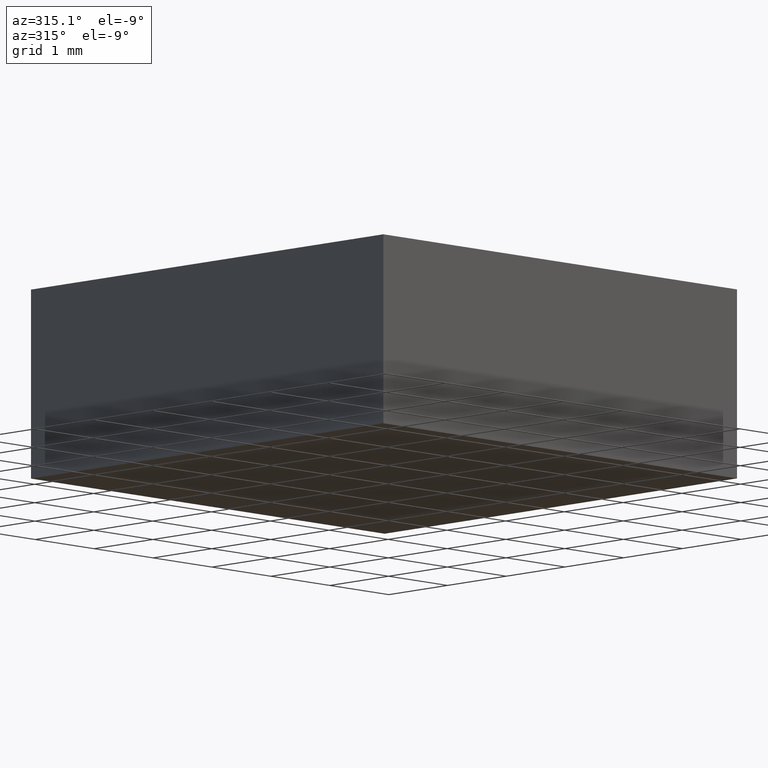
[diagram: clean part render]
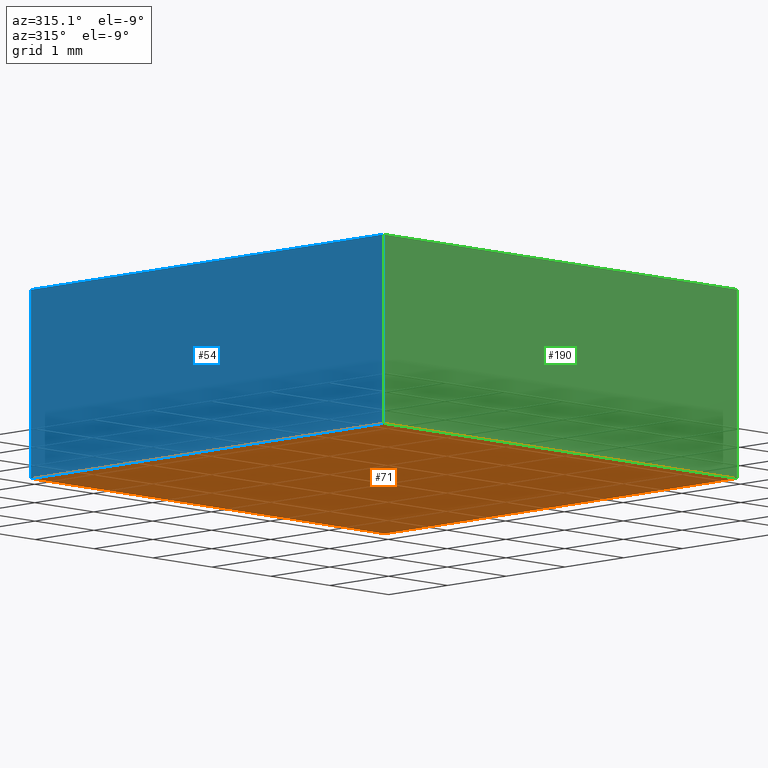
[diagram: same view with three faces highlighted in distinct colors, each labeled with its STEP entity id]
A machine part, auxiliary view with three faces highlighted in distinct colors.
Their STEP definitions:

[orange] entity #71 — the highlighted planar face has unit normal (-0, 0, 1).
#2 = DIRECTION ( 'NONE',  ( -5.782411586589356700E-016, -1.000000000000000000, 0.0000000000000000000 ) ) ;
#5 = CARTESIAN_POINT ( 'NONE',  ( 23.24958715517701800, 9.312648366905317900, 0.0000000000000000000 ) ) ;
#15 = ORIENTED_EDGE ( 'NONE', *, *, #181, .F. ) ;
#21 = CARTESIAN_POINT ( 'NONE',  ( 17.24958715517702100, 15.31264836690531800, 0.0000000000000000000 ) ) ;
#22 = CARTESIAN_POINT ( 'NONE',  ( 23.24958715517702100, 15.31264836690531800, 0.0000000000000000000 ) ) ;
#24 = VECTOR ( 'NONE', #34, 1000.000000000000000 ) ;
#30 = VERTEX_POINT ( 'NONE', #107 ) ;
#34 = DIRECTION ( 'NONE',  ( 5.782411586589356700E-016, 1.000000000000000000, -0.0000000000000000000 ) ) ;
#61 = ORIENTED_EDGE ( 'NONE', *, *, #68, .F. ) ;
#62 = CARTESIAN_POINT ( 'NONE',  ( 0.0000000000000000000, 0.0000000000000000000, 0.0000000000000000000 ) ) ;
#64 = DIRECTION ( 'NONE',  ( -1.000000000000000000, -0.0000000000000000000, -0.0000000000000000000 ) ) ;
#67 = DIRECTION ( 'NONE',  ( 1.000000000000000000, 0.0000000000000000000, 0.0000000000000000000 ) ) ;
#68 = EDGE_CURVE ( 'NONE', #135, #180, #83, .T. ) ;
#71 = ADVANCED_FACE ( 'NONE', ( #150 ), #94, .F. ) ;
#83 = LINE ( 'NONE', #124, #24 ) ;
#88 = VECTOR ( 'NONE', #2, 1000.000000000000000 ) ;
#89 = VERTEX_POINT ( 'NONE', #21 ) ;
#94 = PLANE ( 'NONE',  #193 ) ;
#99 = CARTESIAN_POINT ( 'NONE',  ( 17.24958715517701800, 9.312648366905317900, 0.0000000000000000000 ) ) ;
#105 = ORIENTED_EDGE ( 'NONE', *, *, #174, .F. ) ;
#107 = CARTESIAN_POINT ( 'NONE',  ( 17.24958715517701800, 9.312648366905317900, 0.0000000000000000000 ) ) ;
#113 = EDGE_CURVE ( 'NONE', #89, #30, #134, .T. ) ;
#116 = EDGE_LOOP ( 'NONE', ( #183, #105, #61, #15 ) ) ;
#123 = CARTESIAN_POINT ( 'NONE',  ( 17.24958715517702100, 15.31264836690531800, 0.0000000000000000000 ) ) ;
#124 = CARTESIAN_POINT ( 'NONE',  ( 23.24958715517702100, 15.31264836690531800, 0.0000000000000000000 ) ) ;
#134 = LINE ( 'NONE', #139, #88 ) ;
#135 = VERTEX_POINT ( 'NONE', #5 ) ;
#139 = CARTESIAN_POINT ( 'NONE',  ( 17.24958715517702100, 15.31264836690531800, 0.0000000000000000000 ) ) ;
#140 = DIRECTION ( 'NONE',  ( -0.0000000000000000000, 0.0000000000000000000, 1.000000000000000000 ) ) ;
#150 = FACE_OUTER_BOUND ( 'NONE', #116, .T. ) ;
#153 = DIRECTION ( 'NONE',  ( 1.000000000000000000, 0.0000000000000000000, 0.0000000000000000000 ) ) ;
#165 = VECTOR ( 'NONE', #153, 1000.000000000000000 ) ;
#168 = VECTOR ( 'NONE', #64, 1000.000000000000000 ) ;
#174 = EDGE_CURVE ( 'NONE', #180, #89, #182, .T. ) ;
#180 = VERTEX_POINT ( 'NONE', #22 ) ;
#181 = EDGE_CURVE ( 'NONE', #30, #135, #201, .T. ) ;
#182 = LINE ( 'NONE', #123, #168 ) ;
#183 = ORIENTED_EDGE ( 'NONE', *, *, #113, .F. ) ;
#193 = AXIS2_PLACEMENT_3D ( 'NONE', #62, #140, #67 ) ;
#201 = LINE ( 'NONE', #99, #165 ) ;

[blue] entity #54 — the highlighted planar face has unit normal (1, -0, 0).
#2 = DIRECTION ( 'NONE',  ( -5.782411586589356700E-016, -1.000000000000000000, 0.0000000000000000000 ) ) ;
#14 = VECTOR ( 'NONE', #96, 1000.000000000000000 ) ;
#20 = LINE ( 'NONE', #141, #162 ) ;
#21 = CARTESIAN_POINT ( 'NONE',  ( 17.24958715517702100, 15.31264836690531800, 0.0000000000000000000 ) ) ;
#30 = VERTEX_POINT ( 'NONE', #107 ) ;
#33 = DIRECTION ( 'NONE',  ( 1.000000000000000000, -5.782411586589356700E-016, 0.0000000000000000000 ) ) ;
#36 = LINE ( 'NONE', #172, #14 ) ;
#37 = VERTEX_POINT ( 'NONE', #106 ) ;
#41 = ORIENTED_EDGE ( 'NONE', *, *, #49, .F. ) ;
#45 = DIRECTION ( 'NONE',  ( -0.0000000000000000000, -0.0000000000000000000, -1.000000000000000000 ) ) ;
#46 = CARTESIAN_POINT ( 'NONE',  ( 17.24958715517701800, 9.312648366905317900, 2.299999999999999800 ) ) ;
#49 = EDGE_CURVE ( 'NONE', #146, #30, #154, .T. ) ;
#54 = ADVANCED_FACE ( 'NONE', ( #119 ), #75, .F. ) ;
#65 = VECTOR ( 'NONE', #45, 1000.000000000000000 ) ;
#75 = PLANE ( 'NONE',  #129 ) ;
#88 = VECTOR ( 'NONE', #2, 1000.000000000000000 ) ;
#89 = VERTEX_POINT ( 'NONE', #21 ) ;
#96 = DIRECTION ( 'NONE',  ( -5.782411586589356700E-016, -1.000000000000000000, 0.0000000000000000000 ) ) ;
#103 = EDGE_CURVE ( 'NONE', #37, #89, #20, .T. ) ;
#104 = ORIENTED_EDGE ( 'NONE', *, *, #197, .F. ) ;
#106 = CARTESIAN_POINT ( 'NONE',  ( 17.24958715517702100, 15.31264836690531800, 2.299999999999999800 ) ) ;
#107 = CARTESIAN_POINT ( 'NONE',  ( 17.24958715517701800, 9.312648366905317900, 0.0000000000000000000 ) ) ;
#108 = DIRECTION ( 'NONE',  ( 5.782411586589356700E-016, 1.000000000000000000, 0.0000000000000000000 ) ) ;
#113 = EDGE_CURVE ( 'NONE', #89, #30, #134, .T. ) ;
#119 = FACE_OUTER_BOUND ( 'NONE', #143, .T. ) ;
#129 = AXIS2_PLACEMENT_3D ( 'NONE', #200, #33, #108 ) ;
#134 = LINE ( 'NONE', #139, #88 ) ;
#139 = CARTESIAN_POINT ( 'NONE',  ( 17.24958715517702100, 15.31264836690531800, 0.0000000000000000000 ) ) ;
#141 = CARTESIAN_POINT ( 'NONE',  ( 17.24958715517702100, 15.31264836690531800, 2.299999999999999800 ) ) ;
#143 = EDGE_LOOP ( 'NONE', ( #170, #41, #104, #161 ) ) ;
#146 = VERTEX_POINT ( 'NONE', #46 ) ;
#149 = CARTESIAN_POINT ( 'NONE',  ( 17.24958715517701800, 9.312648366905317900, 2.299999999999999800 ) ) ;
#154 = LINE ( 'NONE', #149, #65 ) ;
#161 = ORIENTED_EDGE ( 'NONE', *, *, #103, .T. ) ;
#162 = VECTOR ( 'NONE', #185, 1000.000000000000000 ) ;
#170 = ORIENTED_EDGE ( 'NONE', *, *, #113, .T. ) ;
#172 = CARTESIAN_POINT ( 'NONE',  ( 17.24958715517702100, 15.31264836690531800, 2.299999999999999800 ) ) ;
#185 = DIRECTION ( 'NONE',  ( -0.0000000000000000000, -0.0000000000000000000, -1.000000000000000000 ) ) ;
#197 = EDGE_CURVE ( 'NONE', #37, #146, #36, .T. ) ;
#200 = CARTESIAN_POINT ( 'NONE',  ( 17.24958715517702100, 15.31264836690531800, 2.299999999999999800 ) ) ;

[green] entity #190 — the highlighted planar face has unit normal (0, 1, 0).
#5 = CARTESIAN_POINT ( 'NONE',  ( 23.24958715517701800, 9.312648366905317900, 0.0000000000000000000 ) ) ;
#8 = EDGE_CURVE ( 'NONE', #40, #135, #56, .T. ) ;
#30 = VERTEX_POINT ( 'NONE', #107 ) ;
#40 = VERTEX_POINT ( 'NONE', #59 ) ;
#43 = CARTESIAN_POINT ( 'NONE',  ( 23.24958715517701800, 9.312648366905317900, 2.299999999999999800 ) ) ;
#45 = DIRECTION ( 'NONE',  ( -0.0000000000000000000, -0.0000000000000000000, -1.000000000000000000 ) ) ;
#46 = CARTESIAN_POINT ( 'NONE',  ( 17.24958715517701800, 9.312648366905317900, 2.299999999999999800 ) ) ;
#47 = EDGE_LOOP ( 'NONE', ( #186, #84, #202, #122 ) ) ;
#48 = DIRECTION ( 'NONE',  ( 0.0000000000000000000, 1.000000000000000000, 0.0000000000000000000 ) ) ;
#49 = EDGE_CURVE ( 'NONE', #146, #30, #154, .T. ) ;
#53 = DIRECTION ( 'NONE',  ( 0.0000000000000000000, -0.0000000000000000000, 1.000000000000000000 ) ) ;
#56 = LINE ( 'NONE', #43, #93 ) ;
#57 = EDGE_CURVE ( 'NONE', #146, #40, #137, .T. ) ;
#59 = CARTESIAN_POINT ( 'NONE',  ( 23.24958715517701800, 9.312648366905317900, 2.299999999999999800 ) ) ;
#63 = CARTESIAN_POINT ( 'NONE',  ( 17.24958715517701800, 9.312648366905317900, 2.299999999999999800 ) ) ;
#65 = VECTOR ( 'NONE', #45, 1000.000000000000000 ) ;
#66 = AXIS2_PLACEMENT_3D ( 'NONE', #127, #48, #53 ) ;
#84 = ORIENTED_EDGE ( 'NONE', *, *, #8, .F. ) ;
#92 = DIRECTION ( 'NONE',  ( -0.0000000000000000000, -0.0000000000000000000, -1.000000000000000000 ) ) ;
#93 = VECTOR ( 'NONE', #92, 1000.000000000000000 ) ;
#99 = CARTESIAN_POINT ( 'NONE',  ( 17.24958715517701800, 9.312648366905317900, 0.0000000000000000000 ) ) ;
#107 = CARTESIAN_POINT ( 'NONE',  ( 17.24958715517701800, 9.312648366905317900, 0.0000000000000000000 ) ) ;
#121 = DIRECTION ( 'NONE',  ( 1.000000000000000000, 0.0000000000000000000, 0.0000000000000000000 ) ) ;
#122 = ORIENTED_EDGE ( 'NONE', *, *, #49, .T. ) ;
#127 = CARTESIAN_POINT ( 'NONE',  ( 17.24958715517701800, 9.312648366905317900, 2.299999999999999800 ) ) ;
#135 = VERTEX_POINT ( 'NONE', #5 ) ;
#137 = LINE ( 'NONE', #63, #175 ) ;
#146 = VERTEX_POINT ( 'NONE', #46 ) ;
#149 = CARTESIAN_POINT ( 'NONE',  ( 17.24958715517701800, 9.312648366905317900, 2.299999999999999800 ) ) ;
#153 = DIRECTION ( 'NONE',  ( 1.000000000000000000, 0.0000000000000000000, 0.0000000000000000000 ) ) ;
#154 = LINE ( 'NONE', #149, #65 ) ;
#165 = VECTOR ( 'NONE', #153, 1000.000000000000000 ) ;
#173 = PLANE ( 'NONE',  #66 ) ;
#175 = VECTOR ( 'NONE', #121, 1000.000000000000000 ) ;
#179 = FACE_OUTER_BOUND ( 'NONE', #47, .T. ) ;
#181 = EDGE_CURVE ( 'NONE', #30, #135, #201, .T. ) ;
#186 = ORIENTED_EDGE ( 'NONE', *, *, #181, .T. ) ;
#190 = ADVANCED_FACE ( 'NONE', ( #179 ), #173, .F. ) ;
#201 = LINE ( 'NONE', #99, #165 ) ;
#202 = ORIENTED_EDGE ( 'NONE', *, *, #57, .F. ) ;